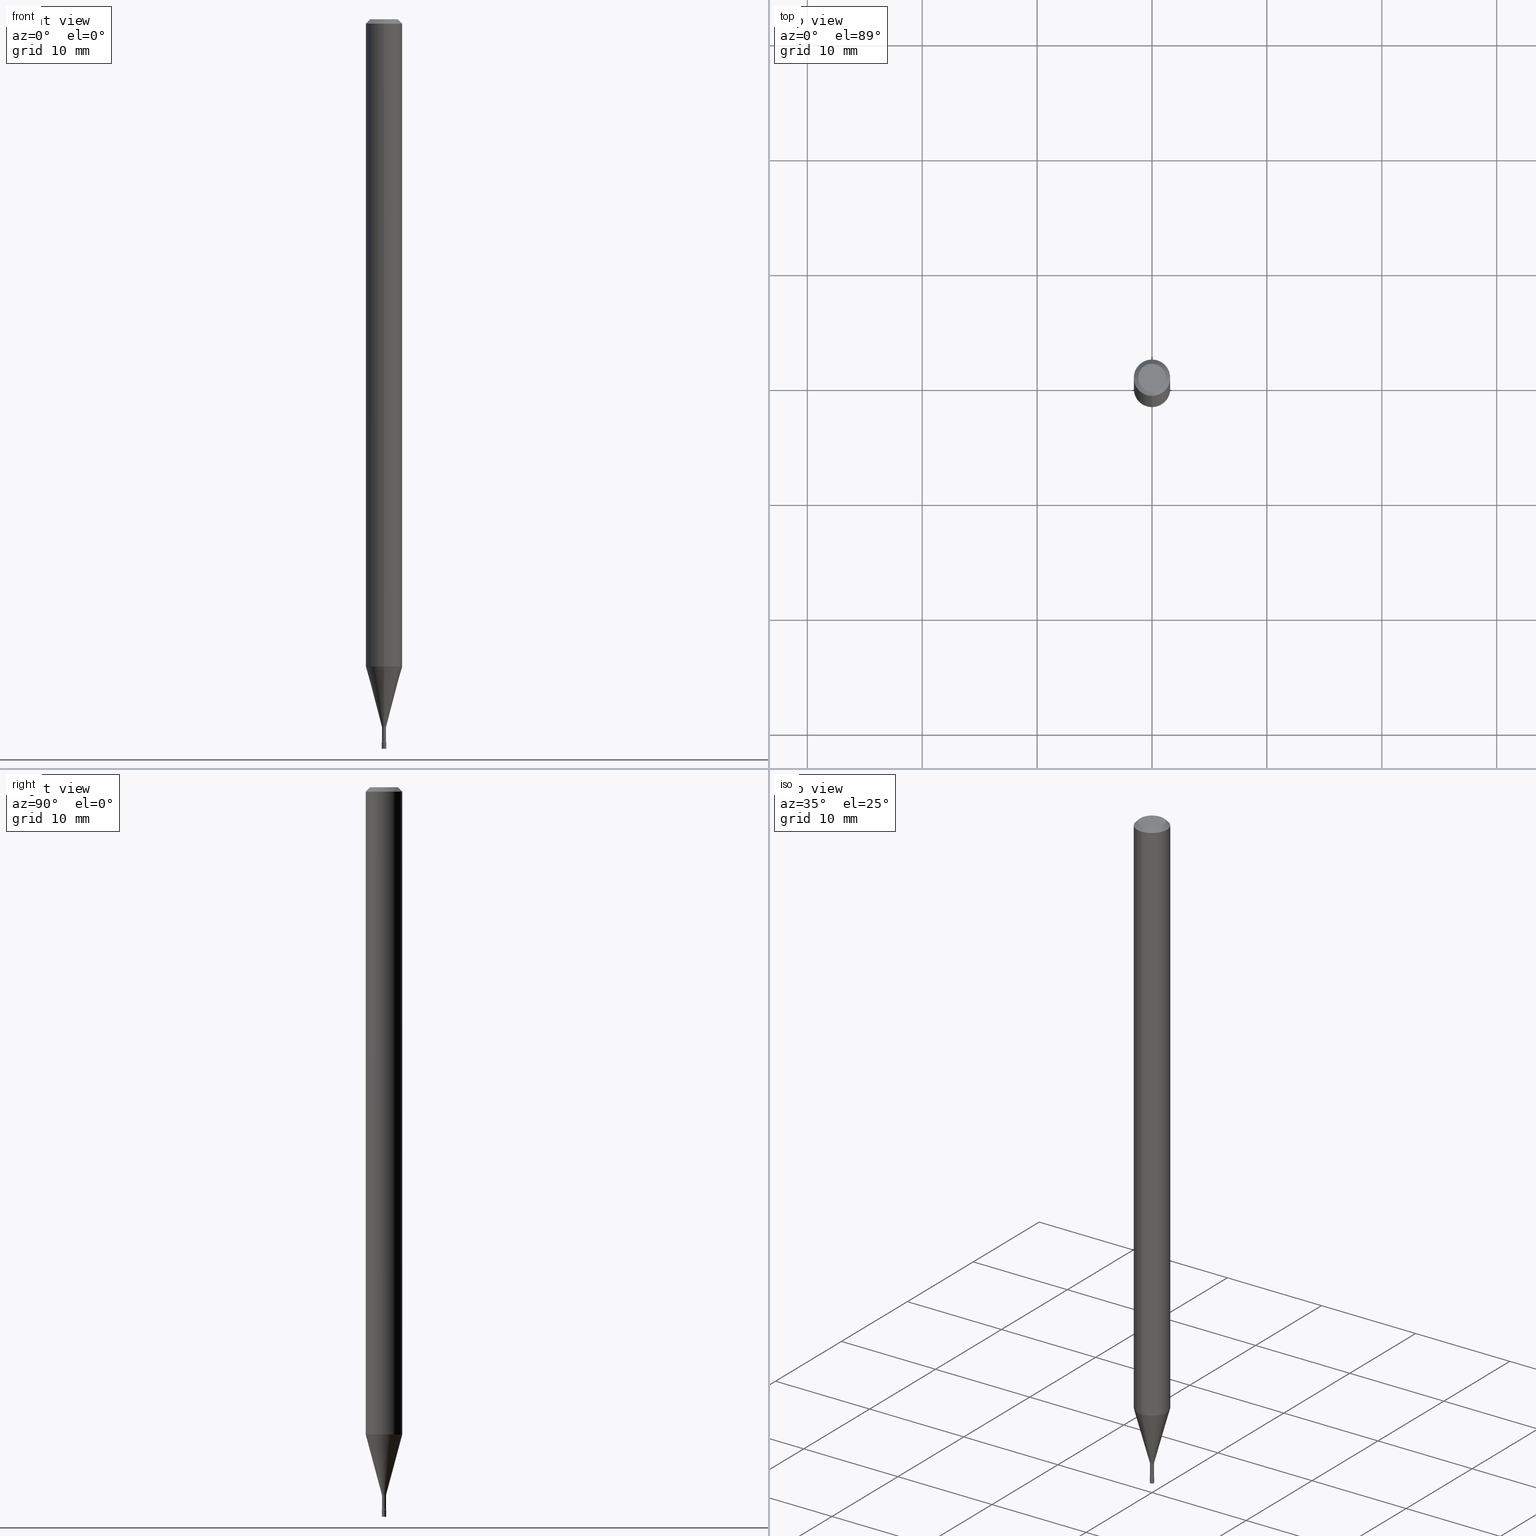
[diagram: canonical four-view strip — front | top / right | iso, engineering-drawing reading convention]
A machine part, canonical four-view strip (front | top / right | iso — engineering-drawing reading convention). The complete STEP part file that produces these views, byte-faithful:
ISO-10303-21;
HEADER;
FILE_DESCRIPTION (( 'STEP AP203' ),
    '1' );
FILE_NAME ('09607.STEP',
    '2024-03-08T23:54:44',
    ( '' ),
    ( '' ),
    'SwSTEP 2.0',
    'SolidWorks 2023',
    '' );
FILE_SCHEMA (( 'CONFIG_CONTROL_DESIGN' ));
ENDSEC;

DATA;
#1 = EDGE_CURVE ( 'NONE', #478, #402, #135, .T. ) ;
#2 = FACE_OUTER_BOUND ( 'NONE', #291, .T. ) ;
#3 = CIRCLE ( 'NONE', #327, 0.007049999999999994639 ) ;
#4 = DIRECTION ( 'NONE',  ( -2.445457239619285156E-29, 3.491497902823772989E-15, 1.000000000000000000 ) ) ;
#5 = ORIENTED_EDGE ( 'NONE', *, *, #184, .F. ) ;
#6 = CARTESIAN_POINT ( 'NONE',  ( 0.007500000000000001457, -8.781075567190511627E-15, -2.500000000000000000 ) ) ;
#7 = APPLICATION_PROTOCOL_DEFINITION ( 'international standard', 'config_control_design', 1994, #148 ) ;
#8 = EDGE_CURVE ( 'NONE', #119, #402, #443, .T. ) ;
#9 = ORIENTED_EDGE ( 'NONE', *, *, #200, .F. ) ;
#10 =( CONVERSION_BASED_UNIT ( 'INCH', #85 ) LENGTH_UNIT ( ) NAMED_UNIT ( #321 ) );
#11 = ADVANCED_FACE ( 'NONE', ( #474 ), #328, .F. ) ;
#12 = ORIENTED_EDGE ( 'NONE', *, *, #8, .T. ) ;
#13 = MANIFOLD_SOLID_BREP ( 'Body-Move/Copy2[2]', #32 ) ;
#14 = CARTESIAN_POINT ( 'NONE',  ( 5.935091136140551956E-29, -8.473737180272706087E-15, -2.426974787463811456 ) ) ;
#15 = ORIENTED_EDGE ( 'NONE', *, *, #437, .T. ) ;
#16 = PERSON_AND_ORGANIZATION_ROLE ( 'design_supplier' ) ;
#17 = LINE ( 'NONE', #462, #220 ) ;
#18 = VECTOR ( 'NONE', #438, 39.37007874015748143 ) ;
#19 = LOCAL_TIME ( 18, 54, 44.00000000000000000, #144 ) ;
#20 = EDGE_LOOP ( 'NONE', ( #338, #264, #12, #482 ) ) ;
#21 = COORDINATED_UNIVERSAL_TIME_OFFSET ( 5, 0, .BEHIND. ) ;
#22 = DIRECTION ( 'NONE',  ( -2.445457239619285156E-29, 3.491497902823772989E-15, 1.000000000000000000 ) ) ;
#23 = ORIENTED_EDGE ( 'NONE', *, *, #142, .T. ) ;
#24 = CARTESIAN_POINT ( 'NONE',  ( -4.922988687762764899E-17, -0.007050000000008630092, -2.473353426265656907 ) ) ;
#25 = CC_DESIGN_PERSON_AND_ORGANIZATION_ASSIGNMENT ( #422, #95, ( #459 ) ) ;
#26 = ORIENTED_EDGE ( 'NONE', *, *, #458, .T. ) ;
#27 = CARTESIAN_POINT ( 'NONE',  ( -1.539743270429227750E-16, -0.02205000000000846908, -2.426974787463811456 ) ) ;
#28 = MANIFOLD_SOLID_BREP ( 'Body-Move/Copy2[1]', #275 ) ;
#29 = CIRCLE ( 'NONE', #457, 0.04749999999999999362 ) ;
#30 = VERTEX_POINT ( 'NONE', #439 ) ;
#31 = CC_DESIGN_APPROVAL ( #167, ( #459 ) ) ;
#32 = CLOSED_SHELL ( 'NONE', ( #294, #380, #373, #442, #347, #251, #172, #103, #362, #11, #466, #514, #54, #215 ) ) ;
#33 = CARTESIAN_POINT ( 'NONE',  ( 6.057426232920582713E-29, -8.648399276314471045E-15, -2.476999999999999869 ) ) ;
#34 = CC_DESIGN_PERSON_AND_ORGANIZATION_ASSIGNMENT ( #243, #406, ( #208 ) ) ;
#35 = DIRECTION ( 'NONE',  ( -2.445468806185136597E-29, 3.491481338843145583E-15, 1.000000000000000000 ) ) ;
#36 = CARTESIAN_POINT ( 'NONE',  ( 0.000000000000000000, 0.000000000000000000, 0.000000000000000000 ) ) ;
#37 = DIRECTION ( 'NONE',  ( 1.000000000000000000, -7.105427357601001070E-15, 4.926315711392341244E-29 ) ) ;
#38 = AXIS2_PLACEMENT_3D ( 'NONE', #146, #255, #205 ) ;
#39 = AXIS2_PLACEMENT_3D ( 'NONE', #305, #304, #389 ) ;
#40 = CARTESIAN_POINT ( 'NONE',  ( -4.364351673553374845E-16, -0.06250000000000775768, -2.218057782720305848 ) ) ;
#41 = ORIENTED_EDGE ( 'NONE', *, *, #211, .T. ) ;
#42 = ORIENTED_EDGE ( 'NONE', *, *, #78, .T. ) ;
#43 = PLANE ( 'NONE',  #231 ) ;
#44 = EDGE_CURVE ( 'NONE', #413, #344, #318, .T. ) ;
#45 = COORDINATED_UNIVERSAL_TIME_OFFSET ( 5, 0, .BEHIND. ) ;
#46 = DIRECTION ( 'NONE',  ( -6.982962677686265133E-15, -1.000000000000000000, 0.000000000000000000 ) ) ;
#47 = AXIS2_PLACEMENT_3D ( 'NONE', #436, #520, #163 ) ;
#48 = CIRCLE ( 'NONE', #247, 0.06250000000000000000 ) ;
#49 = CARTESIAN_POINT ( 'NONE',  ( -4.364351673553912750E-16, -0.06250000000000005551, -0.01499999999999981209 ) ) ;
#50 = CIRCLE ( 'NONE', #371, 0.007049999999999997241 ) ;
#51 = VERTEX_POINT ( 'NONE', #242 ) ;
#52 = CALENDAR_DATE ( 2024, 8, 3 ) ;
#53 = PERSON_AND_ORGANIZATION ( #140, #417 ) ;
#54 = ADVANCED_FACE ( 'NONE', ( #370 ), #404, .T. ) ;
#55 = ORIENTED_EDGE ( 'NONE', *, *, #227, .F. ) ;
#56 = DIRECTION ( 'NONE',  ( -2.438088387897960049E-29, 3.491481338843145188E-15, 1.000000000000000000 ) ) ;
#57 = DIRECTION ( 'NONE',  ( -2.445457239619285156E-29, 3.491497902823772989E-15, 1.000000000000000000 ) ) ;
#58 = EDGE_LOOP ( 'NONE', ( #496, #26, #89, #285 ) ) ;
#59 = DIRECTION ( 'NONE',  ( -6.982962677686265922E-15, -1.000000000000000000, 0.000000000000000000 ) ) ;
#60 = AXIS2_PLACEMENT_3D ( 'NONE', #14, #57, #183 ) ;
#61 = FACE_OUTER_BOUND ( 'NONE', #262, .T. ) ;
#62 = ORIENTED_EDGE ( 'NONE', *, *, #128, .F. ) ;
#63 = CARTESIAN_POINT ( 'NONE',  ( 4.440892098501171462E-16, 0.06249999999999995143, -0.01500000000000024751 ) ) ;
#64 = CARTESIAN_POINT ( 'NONE',  ( 5.237222008270758115E-17, 0.007499999999991352993, -2.476999999999999869 ) ) ;
#65 = CIRCLE ( 'NONE', #293, 0.01500000000000001506 ) ;
#66 =( GEOMETRIC_REPRESENTATION_CONTEXT ( 3 ) GLOBAL_UNCERTAINTY_ASSIGNED_CONTEXT ( ( #361 ) ) GLOBAL_UNIT_ASSIGNED_CONTEXT ( ( #10, #450, #408 ) ) REPRESENTATION_CONTEXT ( 'NONE', 'WORKASPACE' ) );
#67 = APPROVAL ( #297, 'UNSPECIFIED' ) ;
#68 = CIRCLE ( 'NONE', #47, 0.007500000000000001457 ) ;
#69 = DIRECTION ( 'NONE',  ( -6.982962677686265922E-15, -1.000000000000000000, 3.491497902823772989E-15 ) ) ;
#70 = ORIENTED_EDGE ( 'NONE', *, *, #44, .T. ) ;
#71 = DIRECTION ( 'NONE',  ( -6.982962677686265133E-15, -1.000000000000000000, 0.000000000000000000 ) ) ;
#72 = EDGE_LOOP ( 'NONE', ( #252, #388, #70, #434 ) ) ;
#73 = FACE_OUTER_BOUND ( 'NONE', #315, .T. ) ;
#74 = DIRECTION ( 'NONE',  ( -6.982962677686265922E-15, -1.000000000000000000, 3.491497902823772989E-15 ) ) ;
#75 = VECTOR ( 'NONE', #229, 39.37007874015748143 ) ;
#76 = AXIS2_PLACEMENT_3D ( 'NONE', #292, #4, #447 ) ;
#77 = CARTESIAN_POINT ( 'NONE',  ( 6.048480042398513508E-29, -8.635708300748533912E-15, -2.473353426265656907 ) ) ;
#78 = EDGE_CURVE ( 'NONE', #232, #478, #484, .T. ) ;
#79 = DIRECTION ( 'NONE',  ( 4.937700262164548042E-15, 0.7071067811865451302, -0.7071067811865499042 ) ) ;
#80 = ORIENTED_EDGE ( 'NONE', *, *, #177, .T. ) ;
#81 = CALENDAR_DATE ( 2024, 8, 3 ) ;
#82 = CARTESIAN_POINT ( 'NONE',  ( 7.070580874521317768E-46, -1.009501122946659288E-31, -2.891312413878920603E-17 ) ) ;
#83 = ADVANCED_FACE ( 'NONE', ( #2 ), #43, .T. ) ;
#84 = ORIENTED_EDGE ( 'NONE', *, *, #149, .F. ) ;
#85 = LENGTH_MEASURE_WITH_UNIT ( LENGTH_MEASURE( 0.02539999999999999897 ), #245 );
#86 = CARTESIAN_POINT ( 'NONE',  ( 3.840629472727447874E-16, 0.04749999999999999362, -1.947592745229184119E-16 ) ) ;
#87 = EDGE_CURVE ( 'NONE', #124, #430, #68, .T. ) ;
#88 = DATE_AND_TIME ( #81, #383 ) ;
#89 = ORIENTED_EDGE ( 'NONE', *, *, #475, .F. ) ;
#90 = ORIENTED_EDGE ( 'NONE', *, *, #241, .F. ) ;
#91 = DIRECTION ( 'NONE',  ( -2.445457239619285156E-29, 3.491497902823772989E-15, 1.000000000000000000 ) ) ;
#92 = AXIS2_PLACEMENT_3D ( 'NONE', #110, #518, #280 ) ;
#93 = APPROVAL_DATE_TIME ( #494, #67 ) ;
#94 = CARTESIAN_POINT ( 'NONE',  ( -0.007500000000000001457, -8.635260606529160038E-15, -2.500000000000000000 ) ) ;
#95 = PERSON_AND_ORGANIZATION_ROLE ( 'creator' ) ;
#96 = CARTESIAN_POINT ( 'NONE',  ( 5.424165462647271456E-29, -7.744344096709895441E-15, -2.218057782720305848 ) ) ;
#97 = ORIENTED_EDGE ( 'NONE', *, *, #98, .T. ) ;
#98 = EDGE_CURVE ( 'NONE', #51, #206, #50, .T. ) ;
#99 = DIRECTION ( 'NONE',  ( -2.445457239619285156E-29, 3.491497902823772989E-15, 1.000000000000000000 ) ) ;
#100 = AXIS2_PLACEMENT_3D ( 'NONE', #508, #99, #266 ) ;
#101 = APPROVAL_PERSON_ORGANIZATION ( #492, #113, #286 ) ;
#102 = FACE_OUTER_BOUND ( 'NONE', #470, .T. ) ;
#103 = ADVANCED_FACE ( 'NONE', ( #480 ), #235, .T. ) ;
#104 = CARTESIAN_POINT ( 'NONE',  ( -0.007500000000000001457, 5.329070518200752429E-17, -3.689201317691179704E-31 ) ) ;
#105 = CC_DESIGN_DATE_AND_TIME_ASSIGNMENT ( #166, #330, ( #208 ) ) ;
#106 = CARTESIAN_POINT ( 'NONE',  ( 0.000000000000000000, 0.000000000000000000, 0.000000000000000000 ) ) ;
#107 = AXIS2_PLACEMENT_3D ( 'NONE', #398, #37, #196 ) ;
#108 = ORIENTED_EDGE ( 'NONE', *, *, #142, .F. ) ;
#109 = DIRECTION ( 'NONE',  ( 1.000000000000000000, -6.982962677686266711E-15, 4.876176775795935793E-29 ) ) ;
#110 = CARTESIAN_POINT ( 'NONE',  ( 3.316907271900976096E-16, 0.04749999999999999362, -1.803027124535238120E-16 ) ) ;
#111 = DIRECTION ( 'NONE',  ( -6.982962677686265133E-15, -1.000000000000000000, 0.000000000000000000 ) ) ;
#112 = LINE ( 'NONE', #239, #409 ) ;
#113 = APPROVAL ( #332, 'UNSPECIFIED' ) ;
#114 = EDGE_LOOP ( 'NONE', ( #312, #395, #463, #97 ) ) ;
#115 = CYLINDRICAL_SURFACE ( 'NONE', #237, 0.007049999999999996374 ) ;
#116 = ORIENTED_EDGE ( 'NONE', *, *, #325, .F. ) ;
#117 = CONICAL_SURFACE ( 'NONE', #38, 0.007561112605663977346, 0.2617993877991495744 ) ;
#118 = CIRCLE ( 'NONE', #341, 0.007049999999999994639 ) ;
#119 = VERTEX_POINT ( 'NONE', #86 ) ;
#120 = MECHANICAL_CONTEXT ( 'NONE', #148, 'mechanical' ) ;
#121 = CARTESIAN_POINT ( 'NONE',  ( 0.000000000000000000, 0.000000000000000000, 0.000000000000000000 ) ) ;
#122 = EDGE_CURVE ( 'NONE', #337, #430, #501, .T. ) ;
#123 = ORIENTED_EDGE ( 'NONE', *, *, #491, .F. ) ;
#124 = VERTEX_POINT ( 'NONE', #246 ) ;
#125 = TOROIDAL_SURFACE ( 'NONE', #39, 0.02204999999999999669, 0.01500000000000002373 ) ;
#126 = CARTESIAN_POINT ( 'NONE',  ( -0.007500000000000001457, -8.635260606529160038E-15, -2.476999999999999869 ) ) ;
#127 = LOCAL_TIME ( 18, 54, 44.00000000000000000, #45 ) ;
#128 = EDGE_CURVE ( 'NONE', #460, #413, #342, .T. ) ;
#129 = ORIENTED_EDGE ( 'NONE', *, *, #458, .F. ) ;
#130 = CARTESIAN_POINT ( 'NONE',  ( 4.440892098501167517E-16, 0.06249999999999225619, -2.218057782720306292 ) ) ;
#131 = ORIENTED_EDGE ( 'NONE', *, *, #184, .T. ) ;
#132 = DATE_TIME_ROLE ( 'classification_date' ) ;
#133 = EDGE_CURVE ( 'NONE', #143, #51, #112, .T. ) ;
#134 = CARTESIAN_POINT ( 'NONE',  ( 3.668185859428934758E-31, -5.237246854235670453E-17, -0.01500000000000003067 ) ) ;
#135 = CIRCLE ( 'NONE', #329, 0.06250000000000000000 ) ;
#136 = VECTOR ( 'NONE', #352, 39.37007874015748854 ) ;
#137 = LOCAL_TIME ( 18, 54, 44.00000000000000000, #180 ) ;
#138 = DIRECTION ( 'NONE',  ( -2.445457239619285156E-29, 3.491497902823772989E-15, 1.000000000000000000 ) ) ;
#139 = EDGE_LOOP ( 'NONE', ( #511, #197, #223, #403 ) ) ;
#140 = PERSON ( 'UNSPECIFIED', 'UNSPECIFIED', 'UNSPECIFIED', ('UNSPECIFIED'), ('UNSPECIFIED'), ('UNSPECIFIED') ) ;
#141 = DIRECTION ( 'NONE',  ( 1.000000000000000000, -6.982962677686265922E-15, 4.876176775795935793E-29 ) ) ;
#142 = EDGE_CURVE ( 'NONE', #232, #119, #471, .T. ) ;
#143 = VERTEX_POINT ( 'NONE', #24 ) ;
#144 = COORDINATED_UNIVERSAL_TIME_OFFSET ( 5, 0, .BEHIND. ) ;
#145 = CARTESIAN_POINT ( 'NONE',  ( 6.113672015462842613E-29, -8.728703347107864943E-15, -2.500000000000000000 ) ) ;
#146 = CARTESIAN_POINT ( 'NONE',  ( 5.925569100762892628E-29, -8.460222388338274370E-15, -2.423092501787273534 ) ) ;
#147 = AXIS2_PLACEMENT_3D ( 'NONE', #469, #476, #111 ) ;
#148 = APPLICATION_CONTEXT ( 'configuration controlled 3d designs of mechanical parts and assemblies' ) ;
#149 = EDGE_CURVE ( 'NONE', #402, #478, #230, .T. ) ;
#150 = LINE ( 'NONE', #104, #18 ) ;
#151 = ORIENTED_EDGE ( 'NONE', *, *, #509, .T. ) ;
#152 = FACE_OUTER_BOUND ( 'NONE', #298, .T. ) ;
#153 = FACE_OUTER_BOUND ( 'NONE', #20, .T. ) ;
#154 = CIRCLE ( 'NONE', #440, 0.007500000000000001457 ) ;
#155 = CARTESIAN_POINT ( 'NONE',  ( -5.279896712707545228E-17, -0.007561112605672437592, -2.423092501787273534 ) ) ;
#156 = AXIS2_PLACEMENT_3D ( 'NONE', #415, #368, #169 ) ;
#157 = DIRECTION ( 'NONE',  ( -1.000000000000000000, 6.982962677686265922E-15, -4.883557194083112340E-29 ) ) ;
#158 = DIRECTION ( 'NONE',  ( -1.807323732225325406E-15, -0.2588190451025175198, 0.9659258262890690894 ) ) ;
#159 = EDGE_CURVE ( 'NONE', #337, #206, #17, .T. ) ;
#160 = DIRECTION ( 'NONE',  ( -6.982962677686265922E-15, -1.000000000000000000, 3.491497902823772989E-15 ) ) ;
#161 = EDGE_LOOP ( 'NONE', ( #353, #375, #41, #84 ) ) ;
#162 = ORIENTED_EDGE ( 'NONE', *, *, #122, .F. ) ;
#163 = DIRECTION ( 'NONE',  ( -6.982962677686265922E-15, -1.000000000000000000, 0.000000000000000000 ) ) ;
#164 = AXIS2_PLACEMENT_3D ( 'NONE', #468, #316, #198 ) ;
#165 = AXIS2_PLACEMENT_3D ( 'NONE', #121, #331, #320 ) ;
#166 = DATE_AND_TIME ( #52, #127 ) ;
#167 = APPROVAL ( #376, 'UNSPECIFIED' ) ;
#168 = CARTESIAN_POINT ( 'NONE',  ( 4.364351673553919652E-16, 0.06249999999999995143, -0.01500000000000024751 ) ) ;
#169 = DIRECTION ( 'NONE',  ( 1.000000000000000000, 0.000000000000000000, 0.000000000000000000 ) ) ;
#170 = DIRECTION ( 'NONE',  ( 1.000000000000000000, -6.982962677686266711E-15, 0.000000000000000000 ) ) ;
#171 = APPROVAL_ROLE ( '' ) ;
#172 = ADVANCED_FACE ( 'NONE', ( #261 ), #117, .T. ) ;
#173 = AXIS2_PLACEMENT_3D ( 'NONE', #355, #233, #109 ) ;
#174 = EDGE_CURVE ( 'NONE', #460, #206, #516, .T. ) ;
#175 = ORIENTED_EDGE ( 'NONE', *, *, #1, .F. ) ;
#176 = APPLICATION_CONTEXT ( 'configuration controlled 3d designs of mechanical parts and assemblies' ) ;
#177 = EDGE_CURVE ( 'NONE', #212, #185, #416, .T. ) ;
#178 = DIRECTION ( 'NONE',  ( -6.982962677686265133E-15, -1.000000000000000000, 0.000000000000000000 ) ) ;
#179 = ORIENTED_EDGE ( 'NONE', *, *, #87, .F. ) ;
#180 = COORDINATED_UNIVERSAL_TIME_OFFSET ( 5, 0, .BEHIND. ) ;
#181 = AXIS2_PLACEMENT_3D ( 'NONE', #510, #433, #192 ) ;
#182 = APPROVAL_PERSON_ORGANIZATION ( #207, #167, #171 ) ;
#183 = DIRECTION ( 'NONE',  ( -6.982962677686265922E-15, -1.000000000000000000, 3.491497902823772989E-15 ) ) ;
#184 = EDGE_CURVE ( 'NONE', #143, #337, #3, .T. ) ;
#185 = VERTEX_POINT ( 'NONE', #6 ) ;
#186 = SECURITY_CLASSIFICATION_LEVEL ( 'unclassified' ) ;
#187 = DIRECTION ( 'NONE',  ( -1.000000000000000000, 6.982962677686265922E-15, -4.883557194083112340E-29 ) ) ;
#188 = DIRECTION ( 'NONE',  ( 1.000000000000000000, -6.982962677686266711E-15, 0.000000000000000000 ) ) ;
#189 = AXIS2_PLACEMENT_3D ( 'NONE', #36, #279, #193 ) ;
#190 = CC_DESIGN_SECURITY_CLASSIFICATION ( #238, ( #459 ) ) ;
#191 = CARTESIAN_POINT ( 'NONE',  ( 6.048508650603792991E-29, -8.635667332170297409E-15, -2.473353426265656907 ) ) ;
#192 = DIRECTION ( 'NONE',  ( 6.982962677686265922E-15, 1.000000000000000000, -3.483106191921935554E-15 ) ) ;
#193 = DIRECTION ( 'NONE',  ( 1.000000000000000000, -6.982962677686266711E-15, 4.876176775795935793E-29 ) ) ;
#194 = EDGE_CURVE ( 'NONE', #515, #344, #48, .T. ) ;
#195 = AXIS2_PLACEMENT_3D ( 'NONE', #381, #339, #170 ) ;
#196 = DIRECTION ( 'NONE',  ( 7.105427357601000281E-15, 1.000000000000000000, 0.000000000000000000 ) ) ;
#197 = ORIENTED_EDGE ( 'NONE', *, *, #491, .T. ) ;
#198 = DIRECTION ( 'NONE',  ( 6.982962677686265922E-15, 1.000000000000000000, -3.483106191921935554E-15 ) ) ;
#199 = DIRECTION ( 'NONE',  ( -6.982962677686265922E-15, -1.000000000000000000, 3.483106191921935554E-15 ) ) ;
#200 = EDGE_CURVE ( 'NONE', #430, #124, #359, .T. ) ;
#201 = DIRECTION ( 'NONE',  ( 2.438088387897960049E-29, -3.491481338843145188E-15, -1.000000000000000000 ) ) ;
#202 = DIRECTION ( 'NONE',  ( -6.982962677686266711E-15, -1.000000000000000000, 3.491497902823773383E-15 ) ) ;
#203 = VECTOR ( 'NONE', #427, 39.37007874015748143 ) ;
#204 = APPLICATION_PROTOCOL_DEFINITION ( 'international standard', 'config_control_design', 1994, #176 ) ;
#205 = DIRECTION ( 'NONE',  ( -6.982962677686265133E-15, -1.000000000000000000, 0.000000000000000000 ) ) ;
#206 = VERTEX_POINT ( 'NONE', #214 ) ;
#207 = PERSON_AND_ORGANIZATION ( #140, #417 ) ;
#208 = PRODUCT_DEFINITION ( 'UNKNOWN', '', #459, #455 ) ;
#209 = TOROIDAL_SURFACE ( 'NONE', #465, 0.02205000000000000709, 0.01500000000000001332 ) ;
#210 = DATE_AND_TIME ( #213, #360 ) ;
#211 = EDGE_CURVE ( 'NONE', #344, #478, #386, .T. ) ;
#212 = VERTEX_POINT ( 'NONE', #94 ) ;
#213 = CALENDAR_DATE ( 2024, 8, 3 ) ;
#214 = CARTESIAN_POINT ( 'NONE',  ( 5.009326287114752078E-17, 0.007049999999991522250, -2.426974787463811456 ) ) ;
#215 = ADVANCED_FACE ( 'NONE', ( #224 ), #125, .F. ) ;
#216 = CALENDAR_DATE ( 2024, 8, 3 ) ;
#217 = DIRECTION ( 'NONE',  ( -6.982962677686265922E-15, -1.000000000000000000, 3.483106191921935554E-15 ) ) ;
#218 = ORIENTED_EDGE ( 'NONE', *, *, #475, .T. ) ;
#219 = APPROVAL_DATE_TIME ( #385, #167 ) ;
#220 = VECTOR ( 'NONE', #222, 39.37007874015748143 ) ;
#221 = CC_DESIGN_APPROVAL ( #67, ( #238 ) ) ;
#222 = DIRECTION ( 'NONE',  ( -2.445457239619285437E-29, 3.491497902823772989E-15, 1.000000000000000000 ) ) ;
#223 = ORIENTED_EDGE ( 'NONE', *, *, #133, .T. ) ;
#224 = FACE_OUTER_BOUND ( 'NONE', #114, .T. ) ;
#225 = ORIENTED_EDGE ( 'NONE', *, *, #1, .T. ) ;
#226 = DIRECTION ( 'NONE',  ( -2.445457239619285156E-29, 3.491497902823772989E-15, 1.000000000000000000 ) ) ;
#227 = EDGE_CURVE ( 'NONE', #143, #124, #65, .T. ) ;
#228 = EDGE_LOOP ( 'NONE', ( #428, #151, #175, #379 ) ) ;
#229 = DIRECTION ( 'NONE',  ( -2.445468806185136877E-29, 3.491481338843145188E-15, 1.000000000000000000 ) ) ;
#230 = CIRCLE ( 'NONE', #265, 0.06250000000000000000 ) ;
#231 = AXIS2_PLACEMENT_3D ( 'NONE', #278, #201, #290 ) ;
#232 = VERTEX_POINT ( 'NONE', #461 ) ;
#233 = DIRECTION ( 'NONE',  ( -2.445468806185136597E-29, 3.491481338843145583E-15, 1.000000000000000000 ) ) ;
#234 = CYLINDRICAL_SURFACE ( 'NONE', #173, 0.007500000000000001457 ) ;
#235 = CYLINDRICAL_SURFACE ( 'NONE', #432, 0.06250000000000000000 ) ;
#236 = CARTESIAN_POINT ( 'NONE',  ( 5.169198402660783513E-17, 0.007049999999991360053, -2.473353426265656907 ) ) ;
#237 = AXIS2_PLACEMENT_3D ( 'NONE', #313, #473, #435 ) ;
#238 = SECURITY_CLASSIFICATION ( '', '', #186 ) ;
#239 = CARTESIAN_POINT ( 'NONE',  ( -4.922988687768814476E-17, -0.007049999999999996374, 2.461506021490758488E-17 ) ) ;
#240 = DIRECTION ( 'NONE',  ( -6.982962677686266711E-15, -1.000000000000000000, 3.491497902823773383E-15 ) ) ;
#241 = EDGE_CURVE ( 'NONE', #185, #212, #334, .T. ) ;
#242 = CARTESIAN_POINT ( 'NONE',  ( -4.922988687762880147E-17, -0.007050000000008471365, -2.426974787463811456 ) ) ;
#243 = PERSON_AND_ORGANIZATION ( #140, #417 ) ;
#244 = DIRECTION ( 'NONE',  ( -2.445457239619285156E-29, 3.491497902823772989E-15, 1.000000000000000000 ) ) ;
#245 =( LENGTH_UNIT ( ) NAMED_UNIT ( * ) SI_UNIT ( $, .METRE. ) );
#246 = CARTESIAN_POINT ( 'NONE',  ( -5.237222008258649100E-17, -0.007500000000008655125, -2.476999999999999869 ) ) ;
#247 = AXIS2_PLACEMENT_3D ( 'NONE', #96, #138, #258 ) ;
#248 = APPROVAL_PERSON_ORGANIZATION ( #505, #67, #420 ) ;
#249 = ORIENTED_EDGE ( 'NONE', *, *, #177, .F. ) ;
#250 = CARTESIAN_POINT ( 'NONE',  ( 7.070580874521317768E-46, -1.009501122946659288E-31, -2.891312413878920603E-17 ) ) ;
#251 = ADVANCED_FACE ( 'NONE', ( #102 ), #392, .T. ) ;
#252 = ORIENTED_EDGE ( 'NONE', *, *, #401, .F. ) ;
#253 = PERSON_AND_ORGANIZATION ( #140, #417 ) ;
#254 = AXIS2_PLACEMENT_3D ( 'NONE', #33, #35, #489 ) ;
#255 = DIRECTION ( 'NONE',  ( -2.445457239619285156E-29, 3.491497902823772989E-15, 1.000000000000000000 ) ) ;
#256 = CC_DESIGN_DATE_AND_TIME_ASSIGNMENT ( #210, #132, ( #238 ) ) ;
#257 = ORIENTED_EDGE ( 'NONE', *, *, #405, .T. ) ;
#258 = DIRECTION ( 'NONE',  ( -6.982962677686265922E-15, -1.000000000000000000, 4.370956789862821150E-15 ) ) ;
#259 = ADVANCED_BREP_SHAPE_REPRESENTATION ( '09607', ( #28, #13, #156 ), #66 ) ;
#260 = CALENDAR_DATE ( 2024, 8, 3 ) ;
#261 = FACE_OUTER_BOUND ( 'NONE', #72, .T. ) ;
#262 = EDGE_LOOP ( 'NONE', ( #218, #288 ) ) ;
#263 = AXIS2_PLACEMENT_3D ( 'NONE', #82, #407, #202 ) ;
#264 = ORIENTED_EDGE ( 'NONE', *, *, #483, .F. ) ;
#265 = AXIS2_PLACEMENT_3D ( 'NONE', #134, #423, #217 ) ;
#266 = DIRECTION ( 'NONE',  ( -6.982962677686265922E-15, -1.000000000000000000, 4.370956789862821150E-15 ) ) ;
#267 = EDGE_LOOP ( 'NONE', ( #129, #80, #257, #485 ) ) ;
#268 = PRODUCT ( '09607', '09607', '', ( #120 ) ) ;
#269 = CARTESIAN_POINT ( 'NONE',  ( 5.925569100762892628E-29, -8.460222388338274370E-15, -2.423092501787273534 ) ) ;
#270 = ORIENTED_EDGE ( 'NONE', *, *, #133, .F. ) ;
#271 = CARTESIAN_POINT ( 'NONE',  ( 2.489070731061815457E-16, 0.007561112605655517967, -2.423092501787273534 ) ) ;
#272 = ADVANCED_FACE ( 'NONE', ( #61 ), #419, .T. ) ;
#273 = FACE_OUTER_BOUND ( 'NONE', #454, .T. ) ;
#274 = AXIS2_PLACEMENT_3D ( 'NONE', #145, #310, #374 ) ;
#275 = CLOSED_SHELL ( 'NONE', ( #336, #272, #387, #83 ) ) ;
#276 = ORIENTED_EDGE ( 'NONE', *, *, #159, .T. ) ;
#277 = DIRECTION ( 'NONE',  ( -6.982962677686265922E-15, -1.000000000000000000, 3.491497902823772989E-15 ) ) ;
#278 = CARTESIAN_POINT ( 'NONE',  ( 5.237222008270814198E-17, 0.007499999999991272329, -2.500000000000000000 ) ) ;
#279 = DIRECTION ( 'NONE',  ( -2.445468806185136597E-29, 3.491481338843145583E-15, 1.000000000000000000 ) ) ;
#280 = DIRECTION ( 'NONE',  ( 6.982962677686265922E-15, 1.000000000000000000, -3.491497902823772989E-15 ) ) ;
#281 = ORIENTED_EDGE ( 'NONE', *, *, #174, .T. ) ;
#282 = CARTESIAN_POINT ( 'NONE',  ( 5.372493636224587136E-17, 0.007561112605655517099, -2.423092501787273534 ) ) ;
#283 = AXIS2_PLACEMENT_3D ( 'NONE', #343, #346, #464 ) ;
#284 = DIRECTION ( 'NONE',  ( -2.445457239619285437E-29, 3.491497902823772989E-15, 1.000000000000000000 ) ) ;
#285 = ORIENTED_EDGE ( 'NONE', *, *, #405, .F. ) ;
#286 = APPROVAL_ROLE ( '' ) ;
#287 = CARTESIAN_POINT ( 'NONE',  ( 0.000000000000000000, 0.000000000000000000, 0.000000000000000000 ) ) ;
#288 = ORIENTED_EDGE ( 'NONE', *, *, #367, .T. ) ;
#289 = COORDINATED_UNIVERSAL_TIME_OFFSET ( 5, 0, .BEHIND. ) ;
#290 = DIRECTION ( 'NONE',  ( -1.000000000000000000, 6.982962677686265922E-15, -4.876176775795935793E-29 ) ) ;
#291 = EDGE_LOOP ( 'NONE', ( #90, #249 ) ) ;
#292 = CARTESIAN_POINT ( 'NONE',  ( 6.048508650603792991E-29, -8.635667332170297409E-15, -2.473353426265656907 ) ) ;
#293 = AXIS2_PLACEMENT_3D ( 'NONE', #506, #187, #178 ) ;
#294 = ADVANCED_FACE ( 'NONE', ( #308 ), #351, .F. ) ;
#295 = DIRECTION ( 'NONE',  ( -2.445457239619285437E-29, 3.491497902823772989E-15, 1.000000000000000000 ) ) ;
#296 = ORIENTED_EDGE ( 'NONE', *, *, #44, .F. ) ;
#297 = APPROVAL_STATUS ( 'not_yet_approved' ) ;
#298 = EDGE_LOOP ( 'NONE', ( #108, #42, #225, #493 ) ) ;
#299 = CARTESIAN_POINT ( 'NONE',  ( 6.057426232920582713E-29, -8.648399276314471045E-15, -2.476999999999999869 ) ) ;
#300 = CIRCLE ( 'NONE', #100, 0.06250000000000000000 ) ;
#301 = VECTOR ( 'NONE', #295, 39.37007874015748143 ) ;
#302 = ORIENTED_EDGE ( 'NONE', *, *, #98, .F. ) ;
#303 = SHAPE_DEFINITION_REPRESENTATION ( #349, #259 ) ;
#304 = DIRECTION ( 'NONE',  ( -2.445457239619285156E-29, 3.491497902823772989E-15, 1.000000000000000000 ) ) ;
#305 = CARTESIAN_POINT ( 'NONE',  ( 5.935091136140551956E-29, -8.473737180272706087E-15, -2.426974787463811456 ) ) ;
#306 = ORIENTED_EDGE ( 'NONE', *, *, #227, .T. ) ;
#307 = PERSON_AND_ORGANIZATION_ROLE ( 'classification_officer' ) ;
#308 = FACE_OUTER_BOUND ( 'NONE', #384, .T. ) ;
#309 = EDGE_CURVE ( 'NONE', #413, #460, #317, .T. ) ;
#310 = DIRECTION ( 'NONE',  ( -2.445468806185136597E-29, 3.491481338843145583E-15, 1.000000000000000000 ) ) ;
#311 = FACE_OUTER_BOUND ( 'NONE', #228, .T. ) ;
#312 = ORIENTED_EDGE ( 'NONE', *, *, #174, .F. ) ;
#313 = CARTESIAN_POINT ( 'NONE',  ( 0.000000000000000000, 0.000000000000000000, 0.000000000000000000 ) ) ;
#314 = EDGE_CURVE ( 'NONE', #344, #515, #300, .T. ) ;
#315 = EDGE_LOOP ( 'NONE', ( #179, #9 ) ) ;
#316 = DIRECTION ( 'NONE',  ( 2.445457239619285156E-29, -3.491497902823772989E-15, -1.000000000000000000 ) ) ;
#317 = CIRCLE ( 'NONE', #283, 0.007561112605663977346 ) ;
#318 = LINE ( 'NONE', #155, #393 ) ;
#319 = CARTESIAN_POINT ( 'NONE',  ( 5.329070518206810635E-17, 0.007499999999991357330, -2.476999999999999869 ) ) ;
#320 = DIRECTION ( 'NONE',  ( -6.982962677686265133E-15, -1.000000000000000000, 3.491497902823772594E-15 ) ) ;
#321 = DIMENSIONAL_EXPONENTS ( 1.000000000000000000, 0.000000000000000000, 0.000000000000000000, 0.000000000000000000, 0.000000000000000000, 0.000000000000000000, 0.000000000000000000 ) ;
#322 = ORIENTED_EDGE ( 'NONE', *, *, #314, .F. ) ;
#323 = LINE ( 'NONE', #390, #75 ) ;
#324 = CARTESIAN_POINT ( 'NONE',  ( 5.935063064376852946E-29, -8.473777380636070270E-15, -2.426974787463811456 ) ) ;
#325 = EDGE_CURVE ( 'NONE', #413, #51, #399, .T. ) ;
#326 = EDGE_LOOP ( 'NONE', ( #131, #276, #302, #270 ) ) ;
#327 = AXIS2_PLACEMENT_3D ( 'NONE', #421, #91, #59 ) ;
#328 = PLANE ( 'NONE',  #92 ) ;
#329 = AXIS2_PLACEMENT_3D ( 'NONE', #357, #244, #199 ) ;
#330 = DATE_TIME_ROLE ( 'creation_date' ) ;
#331 = DIRECTION ( 'NONE',  ( -2.445457239619285156E-29, 3.491497902823772989E-15, 1.000000000000000000 ) ) ;
#332 = APPROVAL_STATUS ( 'not_yet_approved' ) ;
#333 = DIRECTION ( 'NONE',  ( -2.445457239619285156E-29, 3.491497902823772989E-15, 1.000000000000000000 ) ) ;
#334 = CIRCLE ( 'NONE', #195, 0.007500000000000001457 ) ;
#335 = PERSON_AND_ORGANIZATION_ROLE ( 'design_owner' ) ;
#336 = ADVANCED_FACE ( 'NONE', ( #512 ), #234, .T. ) ;
#337 = VERTEX_POINT ( 'NONE', #236 ) ;
#338 = ORIENTED_EDGE ( 'NONE', *, *, #78, .F. ) ;
#339 = DIRECTION ( 'NONE',  ( -2.445468806185136597E-29, 3.491481338843145583E-15, 1.000000000000000000 ) ) ;
#340 = AXIS2_PLACEMENT_3D ( 'NONE', #269, #333, #495 ) ;
#341 = AXIS2_PLACEMENT_3D ( 'NONE', #77, #488, #441 ) ;
#342 = CIRCLE ( 'NONE', #472, 0.007561112605663977346 ) ;
#343 = CARTESIAN_POINT ( 'NONE',  ( 5.925569100762892628E-29, -8.460222388338274370E-15, -2.423092501787273534 ) ) ;
#344 = VERTEX_POINT ( 'NONE', #40 ) ;
#345 = PERSON_AND_ORGANIZATION ( #140, #417 ) ;
#346 = DIRECTION ( 'NONE',  ( -2.445457239619285156E-29, 3.491497902823772989E-15, 1.000000000000000000 ) ) ;
#347 = ADVANCED_FACE ( 'NONE', ( #311 ), #356, .T. ) ;
#348 = EDGE_LOOP ( 'NONE', ( #364, #23 ) ) ;
#349 = PRODUCT_DEFINITION_SHAPE ( 'NONE', 'NONE',  #208 ) ;
#350 = CARTESIAN_POINT ( 'NONE',  ( 1.566746732351613799E-16, 0.02204999999999152083, -2.426974787463811456 ) ) ;
#351 = TOROIDAL_SURFACE ( 'NONE', #60, 0.02204999999999999669, 0.01500000000000002373 ) ;
#352 = DIRECTION ( 'NONE',  ( 1.839019923739595582E-15, 0.2588190451025242922, 0.9659258262890673130 ) ) ;
#353 = ORIENTED_EDGE ( 'NONE', *, *, #509, .F. ) ;
#354 = CC_DESIGN_PERSON_AND_ORGANIZATION_ASSIGNMENT ( #345, #307, ( #238 ) ) ;
#355 = CARTESIAN_POINT ( 'NONE',  ( 0.000000000000000000, 0.000000000000000000, 0.000000000000000000 ) ) ;
#356 = CYLINDRICAL_SURFACE ( 'NONE', #431, 0.06250000000000000000 ) ;
#357 = CARTESIAN_POINT ( 'NONE',  ( 3.668185859428934758E-31, -5.237246854235670453E-17, -0.01500000000000003067 ) ) ;
#358 = LINE ( 'NONE', #282, #136 ) ;
#359 = CIRCLE ( 'NONE', #451, 0.007500000000000001457 ) ;
#360 = LOCAL_TIME ( 18, 54, 44.00000000000000000, #21 ) ;
#361 = UNCERTAINTY_MEASURE_WITH_UNIT (LENGTH_MEASURE( 1.000000000000000082E-05 ), #10, 'distance_accuracy_value', 'NONE');
#362 = ADVANCED_FACE ( 'NONE', ( #153 ), #410, .T. ) ;
#363 = DIRECTION ( 'NONE',  ( -6.982962677686265133E-15, -1.000000000000000000, 0.000000000000000000 ) ) ;
#364 = ORIENTED_EDGE ( 'NONE', *, *, #483, .T. ) ;
#365 = ORIENTED_EDGE ( 'NONE', *, *, #87, .T. ) ;
#366 = DIRECTION ( 'NONE',  ( -2.445457239619285156E-29, 3.491497902823772989E-15, 1.000000000000000000 ) ) ;
#367 = EDGE_CURVE ( 'NONE', #502, #30, #154, .T. ) ;
#368 = DIRECTION ( 'NONE',  ( 0.000000000000000000, 0.000000000000000000, 1.000000000000000000 ) ) ;
#369 = AXIS2_PLACEMENT_3D ( 'NONE', #27, #157, #71 ) ;
#370 = FACE_OUTER_BOUND ( 'NONE', #139, .T. ) ;
#371 = AXIS2_PLACEMENT_3D ( 'NONE', #324, #366, #46 ) ;
#372 = CARTESIAN_POINT ( 'NONE',  ( 4.440892098500625669E-16, 0.06250000000000000000, -2.182186189264858118E-16 ) ) ;
#373 = ADVANCED_FACE ( 'NONE', ( #273 ), #209, .F. ) ;
#374 = DIRECTION ( 'NONE',  ( 1.000000000000000000, -6.982962677686266711E-15, 0.000000000000000000 ) ) ;
#375 = ORIENTED_EDGE ( 'NONE', *, *, #194, .T. ) ;
#376 = APPROVAL_STATUS ( 'not_yet_approved' ) ;
#377 = DIRECTION ( 'NONE',  ( -2.445457239619285156E-29, 3.491497902823772989E-15, 1.000000000000000000 ) ) ;
#378 = CIRCLE ( 'NONE', #147, 0.007049999999999997241 ) ;
#379 = ORIENTED_EDGE ( 'NONE', *, *, #211, .F. ) ;
#380 = ADVANCED_FACE ( 'NONE', ( #479 ), #115, .T. ) ;
#381 = CARTESIAN_POINT ( 'NONE',  ( 6.113672015462842613E-29, -8.728703347107864943E-15, -2.500000000000000000 ) ) ;
#382 = AXIS2_PLACEMENT_3D ( 'NONE', #350, #497, #503 ) ;
#383 = LOCAL_TIME ( 18, 54, 44.00000000000000000, #289 ) ;
#384 = EDGE_LOOP ( 'NONE', ( #62, #281, #15, #116 ) ) ;
#385 = DATE_AND_TIME ( #216, #137 ) ;
#386 = LINE ( 'NONE', #426, #203 ) ;
#387 = ADVANCED_FACE ( 'NONE', ( #519 ), #397, .T. ) ;
#388 = ORIENTED_EDGE ( 'NONE', *, *, #128, .T. ) ;
#389 = DIRECTION ( 'NONE',  ( -6.982962677686265922E-15, -1.000000000000000000, 3.491497902823772989E-15 ) ) ;
#390 = CARTESIAN_POINT ( 'NONE',  ( 0.007500000000000001457, -5.237222008264701142E-17, 3.657132581846952633E-31 ) ) ;
#391 = CC_DESIGN_PERSON_AND_ORGANIZATION_ASSIGNMENT ( #53, #335, ( #268 ) ) ;
#392 = CONICAL_SURFACE ( 'NONE', #340, 0.007561112605663977346, 0.2617993877991495744 ) ;
#393 = VECTOR ( 'NONE', #158, 39.37007874015748854 ) ;
#394 = DIRECTION ( 'NONE',  ( -2.445457239619284876E-29, 3.491497902823772989E-15, 1.000000000000000000 ) ) ;
#395 = ORIENTED_EDGE ( 'NONE', *, *, #309, .F. ) ;
#396 = DIRECTION ( 'NONE',  ( -2.445468806185136597E-29, 3.491481338843145583E-15, 1.000000000000000000 ) ) ;
#397 = CYLINDRICAL_SURFACE ( 'NONE', #189, 0.007500000000000001457 ) ;
#398 = CARTESIAN_POINT ( 'NONE',  ( 1.566746732351625879E-16, 0.02204999999999137164, -2.473353426265656907 ) ) ;
#399 = CIRCLE ( 'NONE', #369, 0.01500000000000002373 ) ;
#400 = DIRECTION ( 'NONE',  ( -2.445457239619285156E-29, 3.491497902823772989E-15, 1.000000000000000000 ) ) ;
#401 = EDGE_CURVE ( 'NONE', #460, #515, #358, .T. ) ;
#402 = VERTEX_POINT ( 'NONE', #63 ) ;
#403 = ORIENTED_EDGE ( 'NONE', *, *, #437, .F. ) ;
#404 = CYLINDRICAL_SURFACE ( 'NONE', #165, 0.007049999999999996374 ) ;
#405 = EDGE_CURVE ( 'NONE', #185, #30, #323, .T. ) ;
#406 = PERSON_AND_ORGANIZATION_ROLE ( 'creator' ) ;
#407 = DIRECTION ( 'NONE',  ( -2.445457239619285156E-29, 3.491497902823772989E-15, 1.000000000000000000 ) ) ;
#408 =( NAMED_UNIT ( * ) SI_UNIT ( $, .STERADIAN. ) SOLID_ANGLE_UNIT ( ) );
#409 = VECTOR ( 'NONE', #284, 39.37007874015748143 ) ;
#410 = CONICAL_SURFACE ( 'NONE', #164, 0.06250000000000000000, 0.7853981633974483900 ) ;
#411 = DIRECTION ( 'NONE',  ( -2.445457239619285156E-29, 3.491497902823772989E-15, 1.000000000000000000 ) ) ;
#412 = VECTOR ( 'NONE', #477, 39.37007874015748143 ) ;
#413 = VERTEX_POINT ( 'NONE', #517 ) ;
#414 = APPROVAL_DATE_TIME ( #88, #113 ) ;
#415 = CARTESIAN_POINT ( 'NONE',  ( 0.000000000000000000, 0.000000000000000000, 0.000000000000000000 ) ) ;
#416 = CIRCLE ( 'NONE', #274, 0.007500000000000001457 ) ;
#417 = ORGANIZATION ( 'UNSPECIFIED', 'UNSPECIFIED', '' ) ;
#418 = ORIENTED_EDGE ( 'NONE', *, *, #401, .T. ) ;
#419 = PLANE ( 'NONE',  #490 ) ;
#420 = APPROVAL_ROLE ( '' ) ;
#421 = CARTESIAN_POINT ( 'NONE',  ( 6.048480042398513508E-29, -8.635708300748533912E-15, -2.473353426265656907 ) ) ;
#422 = PERSON_AND_ORGANIZATION ( #140, #417 ) ;
#423 = DIRECTION ( 'NONE',  ( -2.445457239619285156E-29, 3.491497902823772989E-15, 1.000000000000000000 ) ) ;
#424 = CIRCLE ( 'NONE', #254, 0.007500000000000001457 ) ;
#425 = TOROIDAL_SURFACE ( 'NONE', #76, 0.02205000000000000709, 0.01500000000000001332 ) ;
#426 = CARTESIAN_POINT ( 'NONE',  ( -4.364351673553916201E-16, -0.06250000000000000000, 2.182186189264858118E-16 ) ) ;
#427 = DIRECTION ( 'NONE',  ( -2.445457239619285437E-29, 3.491497902823772989E-15, 1.000000000000000000 ) ) ;
#428 = ORIENTED_EDGE ( 'NONE', *, *, #314, .T. ) ;
#429 = PLANE ( 'NONE',  #481 ) ;
#430 = VERTEX_POINT ( 'NONE', #319 ) ;
#431 = AXIS2_PLACEMENT_3D ( 'NONE', #106, #400, #160 ) ;
#432 = AXIS2_PLACEMENT_3D ( 'NONE', #287, #448, #74 ) ;
#433 = DIRECTION ( 'NONE',  ( 2.445457239619285156E-29, -3.491497902823772989E-15, -1.000000000000000000 ) ) ;
#434 = ORIENTED_EDGE ( 'NONE', *, *, #194, .F. ) ;
#435 = DIRECTION ( 'NONE',  ( -6.982962677686265133E-15, -1.000000000000000000, 3.491497902823772594E-15 ) ) ;
#436 = CARTESIAN_POINT ( 'NONE',  ( 6.057397582536968309E-29, -8.648440305294485440E-15, -2.476999999999999869 ) ) ;
#437 = EDGE_CURVE ( 'NONE', #206, #51, #378, .T. ) ;
#438 = DIRECTION ( 'NONE',  ( -2.445468806185136877E-29, 3.491481338843145188E-15, 1.000000000000000000 ) ) ;
#439 = CARTESIAN_POINT ( 'NONE',  ( 0.007500000000000001457, -8.700771496397117730E-15, -2.476999999999999869 ) ) ;
#440 = AXIS2_PLACEMENT_3D ( 'NONE', #513, #396, #188 ) ;
#441 = DIRECTION ( 'NONE',  ( -6.982962677686265922E-15, -1.000000000000000000, 0.000000000000000000 ) ) ;
#442 = ADVANCED_FACE ( 'NONE', ( #152 ), #500, .T. ) ;
#443 = LINE ( 'NONE', #168, #498 ) ;
#444 = ORIENTED_EDGE ( 'NONE', *, *, #200, .T. ) ;
#445 = CC_DESIGN_PERSON_AND_ORGANIZATION_ASSIGNMENT ( #253, #16, ( #459 ) ) ;
#446 = CARTESIAN_POINT ( 'NONE',  ( 5.925569100762892628E-29, -8.460222388338274370E-15, -2.423092501787273534 ) ) ;
#447 = DIRECTION ( 'NONE',  ( -6.982962677686265922E-15, -1.000000000000000000, 3.491497902823772989E-15 ) ) ;
#448 = DIRECTION ( 'NONE',  ( -2.445457239619285156E-29, 3.491497902823772989E-15, 1.000000000000000000 ) ) ;
#449 = ORIENTED_EDGE ( 'NONE', *, *, #309, .T. ) ;
#450 =( NAMED_UNIT ( * ) PLANE_ANGLE_UNIT ( ) SI_UNIT ( $, .RADIAN. ) );
#451 = AXIS2_PLACEMENT_3D ( 'NONE', #456, #22, #467 ) ;
#452 = CC_DESIGN_APPROVAL ( #113, ( #208 ) ) ;
#453 = FACE_OUTER_BOUND ( 'NONE', #507, .T. ) ;
#454 = EDGE_LOOP ( 'NONE', ( #123, #504, #444, #55 ) ) ;
#455 = DESIGN_CONTEXT ( 'detailed design', #176, 'design' ) ;
#456 = CARTESIAN_POINT ( 'NONE',  ( 6.057397582536968309E-29, -8.648440305294485440E-15, -2.476999999999999869 ) ) ;
#457 = AXIS2_PLACEMENT_3D ( 'NONE', #250, #377, #240 ) ;
#458 = EDGE_CURVE ( 'NONE', #212, #502, #150, .T. ) ;
#459 = PRODUCT_DEFINITION_FORMATION_WITH_SPECIFIED_SOURCE ( 'ANY', '', #268, .NOT_KNOWN. ) ;
#460 = VERTEX_POINT ( 'NONE', #271 ) ;
#461 = CARTESIAN_POINT ( 'NONE',  ( -3.773273898774340269E-16, -0.04749999999999999362, 1.369330262453400122E-16 ) ) ;
#462 = CARTESIAN_POINT ( 'NONE',  ( 5.009326287108702501E-17, 0.007049999999999996374, -2.461506021490758488E-17 ) ) ;
#463 = ORIENTED_EDGE ( 'NONE', *, *, #325, .T. ) ;
#464 = DIRECTION ( 'NONE',  ( -6.982962677686265133E-15, -1.000000000000000000, 0.000000000000000000 ) ) ;
#465 = AXIS2_PLACEMENT_3D ( 'NONE', #191, #226, #277 ) ;
#466 = ADVANCED_FACE ( 'NONE', ( #73 ), #429, .F. ) ;
#467 = DIRECTION ( 'NONE',  ( -6.982962677686265922E-15, -1.000000000000000000, 0.000000000000000000 ) ) ;
#468 = CARTESIAN_POINT ( 'NONE',  ( 3.668185859428934758E-31, -5.237246854235670453E-17, -0.01500000000000003067 ) ) ;
#469 = CARTESIAN_POINT ( 'NONE',  ( 5.935063064376852946E-29, -8.473777380636070270E-15, -2.426974787463811456 ) ) ;
#470 = EDGE_LOOP ( 'NONE', ( #449, #418, #322, #296 ) ) ;
#471 = CIRCLE ( 'NONE', #263, 0.04749999999999999362 ) ;
#472 = AXIS2_PLACEMENT_3D ( 'NONE', #446, #411, #363 ) ;
#473 = DIRECTION ( 'NONE',  ( -2.445457239619285156E-29, 3.491497902823772989E-15, 1.000000000000000000 ) ) ;
#474 = FACE_OUTER_BOUND ( 'NONE', #348, .T. ) ;
#475 = EDGE_CURVE ( 'NONE', #30, #502, #424, .T. ) ;
#476 = DIRECTION ( 'NONE',  ( -2.445457239619285156E-29, 3.491497902823772989E-15, 1.000000000000000000 ) ) ;
#477 = DIRECTION ( 'NONE',  ( -4.851104656540964275E-15, -0.7071067811865500152, -0.7071067811865450192 ) ) ;
#478 = VERTEX_POINT ( 'NONE', #49 ) ;
#479 = FACE_OUTER_BOUND ( 'NONE', #326, .T. ) ;
#480 = FACE_OUTER_BOUND ( 'NONE', #161, .T. ) ;
#481 = AXIS2_PLACEMENT_3D ( 'NONE', #64, #394, #69 ) ;
#482 = ORIENTED_EDGE ( 'NONE', *, *, #149, .T. ) ;
#483 = EDGE_CURVE ( 'NONE', #119, #232, #29, .T. ) ;
#484 = LINE ( 'NONE', #487, #412 ) ;
#485 = ORIENTED_EDGE ( 'NONE', *, *, #367, .F. ) ;
#486 = LINE ( 'NONE', #372, #301 ) ;
#487 = CARTESIAN_POINT ( 'NONE',  ( -4.287811248607203282E-16, -0.06250000000000005551, -0.01499999999999981209 ) ) ;
#488 = DIRECTION ( 'NONE',  ( -2.445457239619285156E-29, 3.491497902823772989E-15, 1.000000000000000000 ) ) ;
#489 = DIRECTION ( 'NONE',  ( 1.000000000000000000, -6.982962677686266711E-15, 0.000000000000000000 ) ) ;
#490 = AXIS2_PLACEMENT_3D ( 'NONE', #299, #56, #141 ) ;
#491 = EDGE_CURVE ( 'NONE', #337, #143, #118, .T. ) ;
#492 = PERSON_AND_ORGANIZATION ( #140, #417 ) ;
#493 = ORIENTED_EDGE ( 'NONE', *, *, #8, .F. ) ;
#494 = DATE_AND_TIME ( #260, #19 ) ;
#495 = DIRECTION ( 'NONE',  ( -6.982962677686265133E-15, -1.000000000000000000, 0.000000000000000000 ) ) ;
#496 = ORIENTED_EDGE ( 'NONE', *, *, #241, .T. ) ;
#497 = DIRECTION ( 'NONE',  ( 1.000000000000000000, -7.105427357601001070E-15, 4.926315711392341244E-29 ) ) ;
#498 = VECTOR ( 'NONE', #79, 39.37007874015748143 ) ;
#499 = PRODUCT_RELATED_PRODUCT_CATEGORY ( 'detail', '', ( #268 ) ) ;
#500 = CONICAL_SURFACE ( 'NONE', #181, 0.06250000000000000000, 0.7853981633974483900 ) ;
#501 = CIRCLE ( 'NONE', #107, 0.01500000000000001506 ) ;
#502 = VERTEX_POINT ( 'NONE', #126 ) ;
#503 = DIRECTION ( 'NONE',  ( 7.105427357601001859E-15, 1.000000000000000000, 0.000000000000000000 ) ) ;
#504 = ORIENTED_EDGE ( 'NONE', *, *, #122, .T. ) ;
#505 = PERSON_AND_ORGANIZATION ( #140, #417 ) ;
#506 = CARTESIAN_POINT ( 'NONE',  ( -1.539743270429217396E-16, -0.02205000000000864255, -2.473353426265656907 ) ) ;
#507 = EDGE_LOOP ( 'NONE', ( #162, #5, #306, #365 ) ) ;
#508 = CARTESIAN_POINT ( 'NONE',  ( 5.424165462647271456E-29, -7.744344096709895441E-15, -2.218057782720305848 ) ) ;
#509 = EDGE_CURVE ( 'NONE', #515, #402, #486, .T. ) ;
#510 = CARTESIAN_POINT ( 'NONE',  ( 3.668185859428934758E-31, -5.237246854235670453E-17, -0.01500000000000003067 ) ) ;
#511 = ORIENTED_EDGE ( 'NONE', *, *, #159, .F. ) ;
#512 = FACE_OUTER_BOUND ( 'NONE', #58, .T. ) ;
#513 = CARTESIAN_POINT ( 'NONE',  ( 6.057426232920582713E-29, -8.648399276314471045E-15, -2.476999999999999869 ) ) ;
#514 = ADVANCED_FACE ( 'NONE', ( #453 ), #425, .F. ) ;
#515 = VERTEX_POINT ( 'NONE', #130 ) ;
#516 = CIRCLE ( 'NONE', #382, 0.01500000000000002373 ) ;
#517 = CARTESIAN_POINT ( 'NONE',  ( -5.279896712707545228E-17, -0.007561112605672437592, -2.423092501787273534 ) ) ;
#518 = DIRECTION ( 'NONE',  ( 2.445457239619284876E-29, -3.491497902823772989E-15, -1.000000000000000000 ) ) ;
#519 = FACE_OUTER_BOUND ( 'NONE', #267, .T. ) ;
#520 = DIRECTION ( 'NONE',  ( -2.445457239619285156E-29, 3.491497902823772989E-15, 1.000000000000000000 ) ) ;
ENDSEC;
END-ISO-10303-21;
